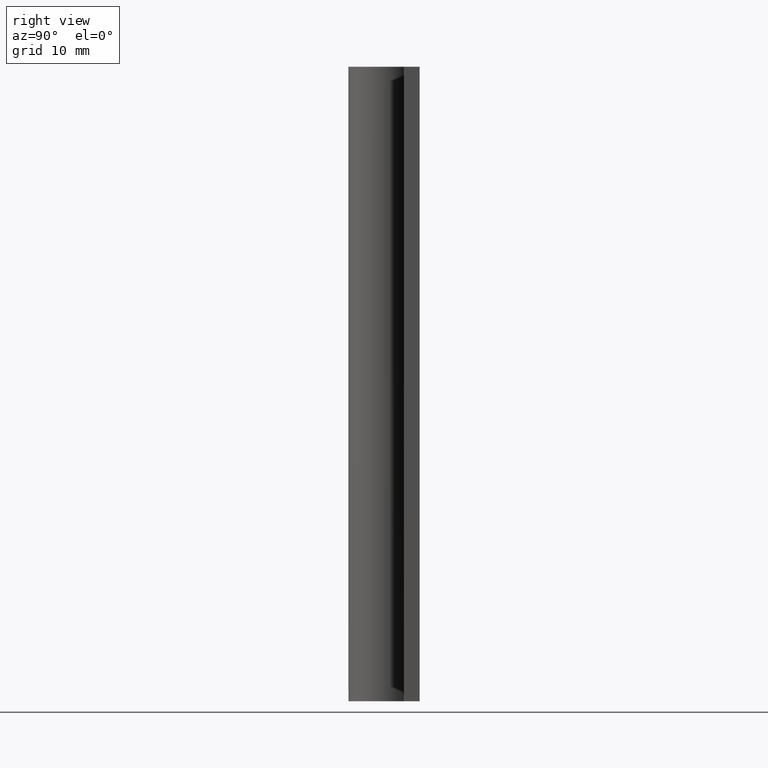
[diagram: clean part render]
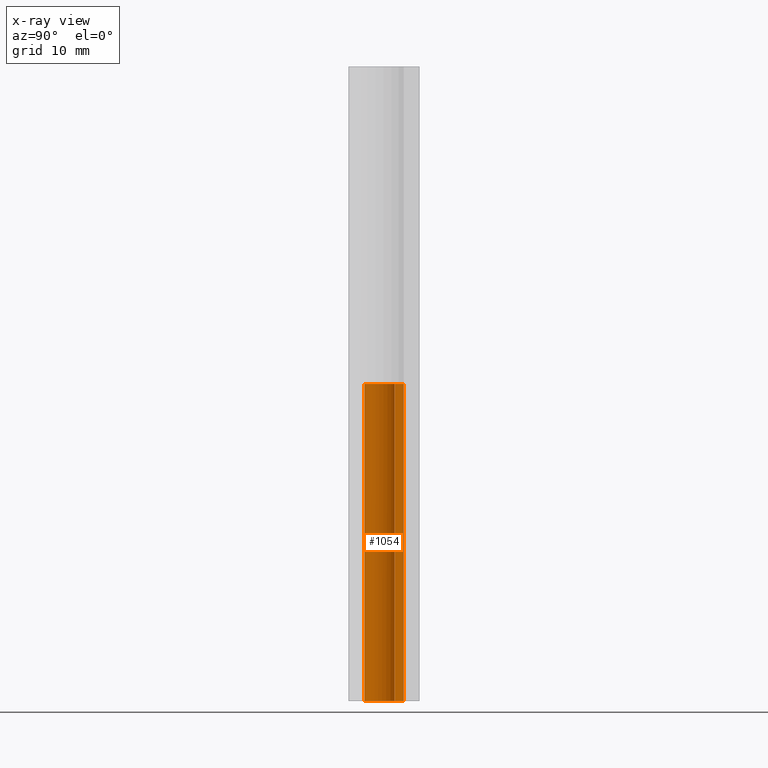
[diagram: x-ray — body ghosted, one internal face saturated and labeled with its STEP entity id]
A machine part, right view, then the same camera in x-ray: the body is ghosted and one INTERNAL B-rep face — a face not visible from any outside direction — is saturated and labeled: STEP entity #1054.
In plain terms, the highlighted face is a freeform B-spline surface patch.
Its self-contained STEP definition (entity closure, byte-faithful):
#779=CARTESIAN_POINT('',(1.681186750152665,1.083333333333334,32.000008000000051));
#780=VERTEX_POINT('',#779);
#786=CARTESIAN_POINT('',(0.0,2.0,32.000008000000051));
#787=VERTEX_POINT('',#786);
#788=CARTESIAN_POINT('',(0.0,2.0,32.000008000000051));
#789=CARTESIAN_POINT('',(-1.554136556548023,2.000000000000000,32.000008000000051));
#790=CARTESIAN_POINT('',(-1.938025359003881,0.494021971027481,32.000008000000051));
#791=CARTESIAN_POINT('',(-2.321914161459739,-1.011956057945038,32.000008000000051));
#792=CARTESIAN_POINT('',(-0.957427107756339,-1.755942292142123,32.000008000000051));
#793=CARTESIAN_POINT('',(0.407059945947064,-2.499928526339208,32.000008000000051));
#794=CARTESIAN_POINT('',(1.465035332114956,-1.361496043202044,32.000008000000051));
#795=CARTESIAN_POINT('',(2.523010718282848,-0.223063560064880,32.000008000000051));
#796=CARTESIAN_POINT('',(1.681186750152668,1.083333333333334,32.000008000000051));
#804=(BOUNDED_CURVE()B_SPLINE_CURVE(2,(#788,#789,#790,#791,#792,#793,#794,#795,#796),.UNSPECIFIED.,.F.,.U.)B_SPLINE_CURVE_WITH_KNOTS((3,2,2,2,3),(0.0,0.250000000000000,0.500000000000000,0.750000000000000,1.0),.UNSPECIFIED.)CURVE()GEOMETRIC_REPRESENTATION_ITEM()RATIONAL_B_SPLINE_CURVE((1.0,0.789623639943024,1.0,0.789623639943024,1.0,0.789623639943024,1.0,0.789623639943024,1.0))REPRESENTATION_ITEM(''));
#805=EDGE_CURVE('',#787,#780,#804,.T.);
#820=CARTESIAN_POINT('',(1.681186750152665,1.083333333333334,0.0));
#821=VERTEX_POINT('',#820);
#822=CARTESIAN_POINT('',(0.0,2.0,0.0));
#823=VERTEX_POINT('',#822);
#824=CARTESIAN_POINT('',(1.681186750152667,1.083333333333335,0.0));
#825=CARTESIAN_POINT('',(2.523010718282847,-0.223063560064879,0.0));
#826=CARTESIAN_POINT('',(1.465035332114957,-1.361496043202043,0.0));
#827=CARTESIAN_POINT('',(0.407059945947065,-2.499928526339208,0.0));
#828=CARTESIAN_POINT('',(-0.957427107756338,-1.755942292142124,0.0));
#829=CARTESIAN_POINT('',(-2.321914161459740,-1.011956057945040,0.0));
#830=CARTESIAN_POINT('',(-1.938025359003882,0.494021971027480,0.0));
#831=CARTESIAN_POINT('',(-1.554136556548024,2.0,0.0));
#832=CARTESIAN_POINT('',(0.0,2.0,0.0));
#840=(BOUNDED_CURVE()B_SPLINE_CURVE(2,(#824,#825,#826,#827,#828,#829,#830,#831,#832),.UNSPECIFIED.,.F.,.U.)B_SPLINE_CURVE_WITH_KNOTS((3,2,2,2,3),(0.0,0.250000000000000,0.500000000000000,0.750000000000000,1.0),.UNSPECIFIED.)CURVE()GEOMETRIC_REPRESENTATION_ITEM()RATIONAL_B_SPLINE_CURVE((1.0,0.789623639943024,1.0,0.789623639943024,1.0,0.789623639943024,1.0,0.789623639943024,1.0))REPRESENTATION_ITEM(''));
#841=EDGE_CURVE('',#821,#823,#840,.T.);
#946=CARTESIAN_POINT('',(1.681186750152665,1.083333333333334,0.0));
#947=CARTESIAN_POINT('',(1.681186750152665,1.083333333333334,32.000008000000051));
#948=QUASI_UNIFORM_CURVE('',1,(#946,#947),.UNSPECIFIED.,.F.,.U.);
#949=EDGE_CURVE('',#821,#780,#948,.T.);
#1016=CARTESIAN_POINT('',(0.0,2.0,0.0));
#1017=CARTESIAN_POINT('',(0.0,2.0,32.000008000000051));
#1018=QUASI_UNIFORM_CURVE('',1,(#1016,#1017),.UNSPECIFIED.,.F.,.U.);
#1019=EDGE_CURVE('',#823,#787,#1018,.T.);
#1026=CARTESIAN_POINT('',(1.648252377244031,1.132812473849665,-0.800000200000002));
#1027=CARTESIAN_POINT('',(1.648252377244031,1.132812473849665,32.820008205000057));
#1028=CARTESIAN_POINT('',(3.072392839237682,-0.939324756448846,-0.800000200000003));
#1029=CARTESIAN_POINT('',(3.072392839237682,-0.939324756448846,32.820008205000057));
#1030=CARTESIAN_POINT('',(0.733002453448593,-1.860835135964049,-0.800000200000002));
#1031=CARTESIAN_POINT('',(0.733002453448593,-1.860835135964049,32.820008205000057));
#1032=CARTESIAN_POINT('',(-1.606387932340497,-2.782345515479251,-0.800000200000003));
#1033=CARTESIAN_POINT('',(-1.606387932340497,-2.782345515479251,32.820008205000057));
#1034=CARTESIAN_POINT('',(-1.978031726723833,-0.295618822259219,-0.800000200000002));
#1035=CARTESIAN_POINT('',(-1.978031726723833,-0.295618822259219,32.820008205000057));
#1036=CARTESIAN_POINT('',(-2.349675521107169,2.191107870960812,-0.800000200000003));
#1037=CARTESIAN_POINT('',(-2.349675521107169,2.191107870960812,32.820008205000057));
#1038=CARTESIAN_POINT('',(0.156918191455692,1.993834667466255,-0.800000200000002));
#1039=CARTESIAN_POINT('',(0.156918191455692,1.993834667466255,32.820008205000057));
#1047=(BOUNDED_SURFACE()B_SPLINE_SURFACE(1,2,((#1026,#1028,#1030,#1032,#1034,#1036,#1038),(#1027,#1029,#1031,#1033,#1035,#1037,#1039)),.UNSPECIFIED.,.F.,.F.,.U.)B_SPLINE_SURFACE_WITH_KNOTS((2,2),(3,2,2,3),(0.0,33.620008405000057),(0.0,3.858741926540564,7.717483853081127,11.576225779621691),.UNSPECIFIED.)GEOMETRIC_REPRESENTATION_ITEM()RATIONAL_B_SPLINE_SURFACE(((1.0,0.622514636637620,1.0,0.622514636637620,1.0,0.622514636637620,1.0),(1.0,0.622514636637620,1.0,0.622514636637620,1.0,0.622514636637620,1.0)))REPRESENTATION_ITEM('')SURFACE());
#1048=ORIENTED_EDGE('',*,*,#1019,.T.);
#1049=ORIENTED_EDGE('',*,*,#805,.T.);
#1050=ORIENTED_EDGE('',*,*,#949,.F.);
#1051=ORIENTED_EDGE('',*,*,#841,.T.);
#1052=EDGE_LOOP('',(#1048,#1049,#1050,#1051));
#1053=FACE_OUTER_BOUND('',#1052,.T.);
#1054=ADVANCED_FACE('',(#1053),#1047,.F.);